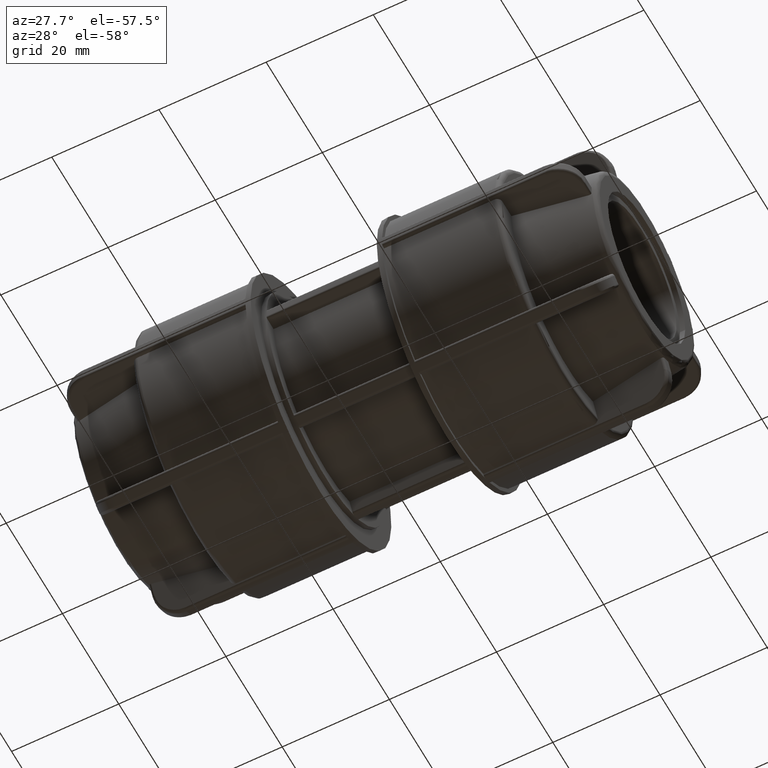
[diagram: clean part render]
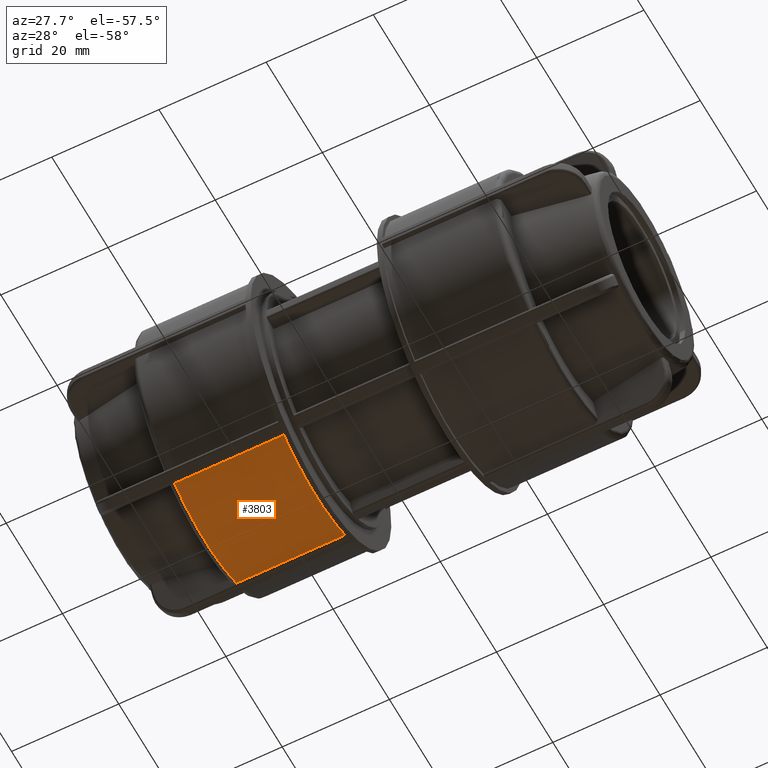
[diagram: same view with one face highlighted and labeled with its STEP entity id]
A machine part, auxiliary view. The second image highlights one B-rep face of the part: STEP entity #3803.
In plain terms, the highlighted cylindrical surface (partial cylindrical patch) has radius 24.25 mm, axis along (1, 0, 0).
Its self-contained STEP definition (entity closure, byte-faithful):
#417=FACE_OUTER_BOUND('',#659,.T.);
#659=EDGE_LOOP('',(#2984,#2985,#2986,#2987));
#856=LINE('',#5788,#1084);
#915=LINE('',#6630,#1143);
#1084=VECTOR('',#4640,20.58);
#1143=VECTOR('',#4871,20.58);
#1372=CIRCLE('',#4145,24.25);
#1378=CIRCLE('',#4157,24.25);
#1569=VERTEX_POINT('',#5785);
#1570=VERTEX_POINT('',#5787);
#1676=VERTEX_POINT('',#6618);
#1677=VERTEX_POINT('',#6629);
#1985=EDGE_CURVE('',#1570,#1569,#856,.T.);
#2137=EDGE_CURVE('',#1677,#1676,#915,.T.);
#2170=EDGE_CURVE('',#1570,#1676,#1372,.T.);
#2178=EDGE_CURVE('',#1677,#1569,#1378,.T.);
#2984=ORIENTED_EDGE('',*,*,#1985,.T.);
#2985=ORIENTED_EDGE('',*,*,#2178,.F.);
#2986=ORIENTED_EDGE('',*,*,#2137,.T.);
#2987=ORIENTED_EDGE('',*,*,#2170,.F.);
#3651=CYLINDRICAL_SURFACE('',#4156,24.25);
#3803=ADVANCED_FACE('',(#417),#3651,.T.);
#4145=AXIS2_PLACEMENT_3D('',#6731,#4943,#4944);
#4156=AXIS2_PLACEMENT_3D('',#6746,#4967,#4968);
#4157=AXIS2_PLACEMENT_3D('',#6747,#4969,#4970);
#4640=DIRECTION('',(1.,3.06161699786838E-16,0.));
#4871=DIRECTION('',(-1.,-3.06161699786838E-16,0.));
#4943=DIRECTION('center_axis',(-1.,-3.06161699786838E-16,0.));
#4944=DIRECTION('ref_axis',(3.03308352088316E-16,-1.,1.83697019872103E-16));
#4967=DIRECTION('center_axis',(1.,3.06161699786838E-16,0.));
#4968=DIRECTION('ref_axis',(-5.2707459866403E-17,1.,0.));
#4969=DIRECTION('center_axis',(1.,3.06161699786838E-16,0.));
#4970=DIRECTION('ref_axis',(0.,0.,-1.));
#5785=CARTESIAN_POINT('',(-12.74,11.0263492835818,-21.5981971811644));
#5787=CARTESIAN_POINT('',(-33.32,11.0263492835817,-21.5981971811643));
#5788=CARTESIAN_POINT('',(-23.52,11.0263492835817,-21.5981971811643));
#6618=CARTESIAN_POINT('',(-33.32,-11.0263492835818,-21.5981971811643));
#6629=CARTESIAN_POINT('',(-12.74,-11.0263492835818,-21.5981971811643));
#6630=CARTESIAN_POINT('',(-23.52,-11.0263492835818,-21.5981971811643));
#6731=CARTESIAN_POINT('Origin',(-33.32,-1.02013078368975E-14,0.));
#6746=CARTESIAN_POINT('Origin',(-23.52,-7.20092317898644E-15,0.));
#6747=CARTESIAN_POINT('Origin',(-12.74,-3.90050005528432E-15,0.));